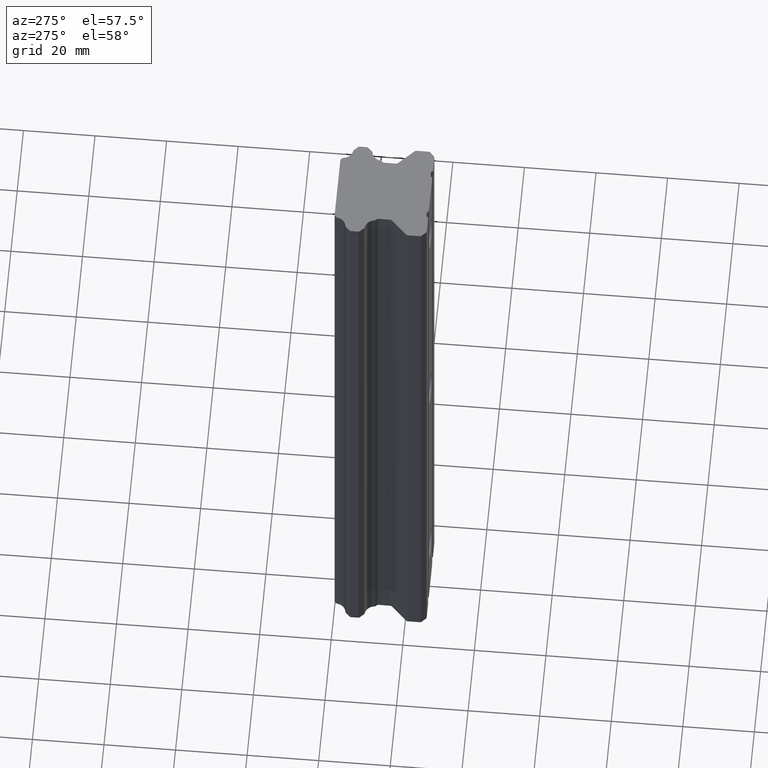
[diagram: clean part render]
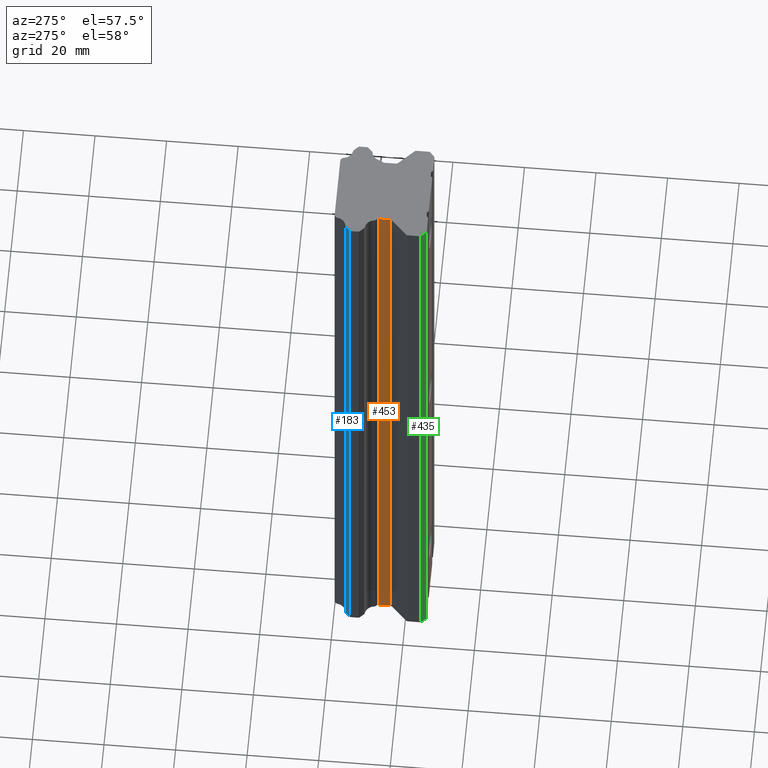
[diagram: same view with three faces highlighted in distinct colors, each labeled with its STEP entity id]
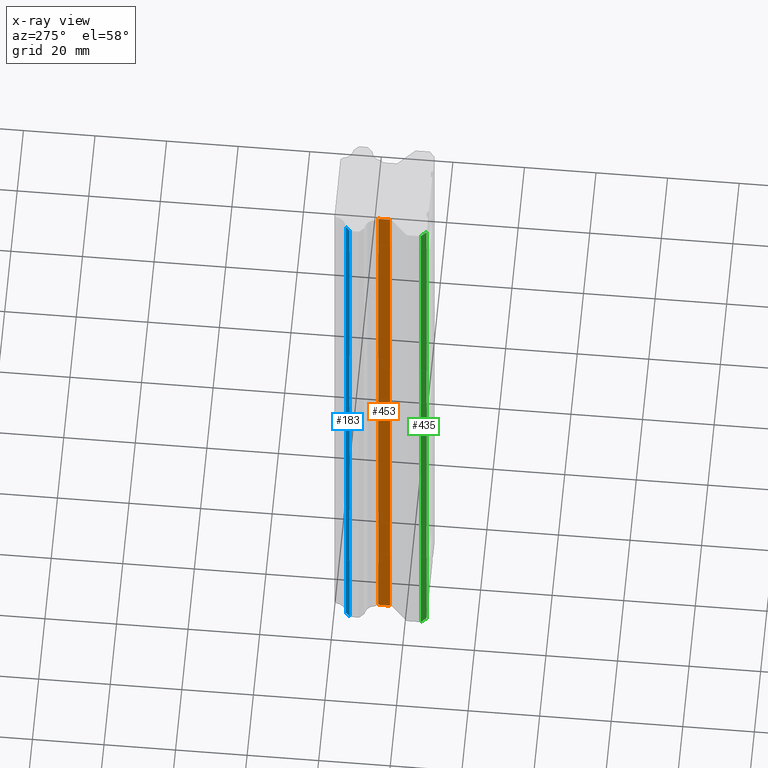
[diagram: x-ray of the same camera — body ghosted, the three highlighted faces saturated]
A machine part, auxiliary view with three faces highlighted in distinct colors.
The next image is the same camera in x-ray (body ghosted, the three faces saturated) — at least one of them is partly hidden behind the body in this view.
Their STEP definitions:

[orange] entity #453 — the highlighted planar face has unit normal (-1, 0, 0).
#145 = VERTEX_POINT ( 'NONE', #768 ) ;
#163 = EDGE_CURVE ( 'NONE', #145, #192, #801, .T. ) ;
#167 = VERTEX_POINT ( 'NONE', #790 ) ;
#169 = EDGE_CURVE ( 'NONE', #167, #173, #789, .T. ) ;
#173 = VERTEX_POINT ( 'NONE', #780 ) ;
#192 = VERTEX_POINT ( 'NONE', #874 ) ;
#381 = EDGE_CURVE ( 'NONE', #192, #167, #1077, .T. ) ;
#382 = ORIENTED_EDGE ( 'NONE', *, *, #169, .T. ) ;
#383 = ORIENTED_EDGE ( 'NONE', *, *, #399, .F. ) ;
#399 = EDGE_CURVE ( 'NONE', #145, #173, #1119, .T. ) ;
#453 = ADVANCED_FACE ( 'NONE', ( #1221 ), #1220, .T. ) ;
#454 = EDGE_LOOP ( 'NONE', ( #455, #456, #382, #383 ) ) ;
#455 = ORIENTED_EDGE ( 'NONE', *, *, #163, .T. ) ;
#456 = ORIENTED_EDGE ( 'NONE', *, *, #381, .T. ) ;
#768 = CARTESIAN_POINT ( 'NONE',  ( -9.300000000000000700, -12.29305139509999900, 100.0000000000000000 ) ) ;
#780 = CARTESIAN_POINT ( 'NONE',  ( -9.300000000000000700, -15.52752949536500000, 100.0000000000000000 ) ) ;
#786 = DIRECTION ( 'NONE',  ( 0.0000000000000000000, 0.0000000000000000000, 1.000000000000000000 ) ) ;
#787 = VECTOR ( 'NONE', #786, 1000.000000000000000 ) ;
#788 = CARTESIAN_POINT ( 'NONE',  ( -9.300000000000000700, -15.52752949537000000, -100.0000000000000000 ) ) ;
#789 = LINE ( 'NONE', #788, #787 ) ;
#790 = CARTESIAN_POINT ( 'NONE',  ( -9.300000000000000700, -15.52752949536500000, -100.0000000000000000 ) ) ;
#798 = DIRECTION ( 'NONE',  ( 0.0000000000000000000, 0.0000000000000000000, -1.000000000000000000 ) ) ;
#799 = VECTOR ( 'NONE', #798, 1000.000000000000000 ) ;
#800 = CARTESIAN_POINT ( 'NONE',  ( -9.300000000000000700, -12.29305139509999900, -100.0000000000000000 ) ) ;
#801 = LINE ( 'NONE', #800, #799 ) ;
#874 = CARTESIAN_POINT ( 'NONE',  ( -9.300000000000000700, -12.29305139509999900, -100.0000000000000000 ) ) ;
#1070 = DIRECTION ( 'NONE',  ( 0.0000000000000000000, -1.000000000000000000, 0.0000000000000000000 ) ) ;
#1071 = VECTOR ( 'NONE', #1070, 1000.000000000000000 ) ;
#1072 = CARTESIAN_POINT ( 'NONE',  ( -9.300000000000000700, 0.0000000000000000000, -100.0000000000000000 ) ) ;
#1077 = LINE ( 'NONE', #1072, #1071 ) ;
#1116 = DIRECTION ( 'NONE',  ( 0.0000000000000000000, -1.000000000000000000, 0.0000000000000000000 ) ) ;
#1117 = VECTOR ( 'NONE', #1116, 1000.000000000000000 ) ;
#1118 = CARTESIAN_POINT ( 'NONE',  ( -9.300000000000000700, 0.0000000000000000000, 100.0000000000000000 ) ) ;
#1119 = LINE ( 'NONE', #1118, #1117 ) ;
#1216 = DIRECTION ( 'NONE',  ( 0.0000000000000000000, 0.0000000000000000000, 1.000000000000000000 ) ) ;
#1217 = DIRECTION ( 'NONE',  ( -1.000000000000000000, 0.0000000000000000000, 0.0000000000000000000 ) ) ;
#1218 = CARTESIAN_POINT ( 'NONE',  ( -9.300000000000000700, -12.29305139509999900, -100.0000000000000000 ) ) ;
#1219 = AXIS2_PLACEMENT_3D ( 'NONE', #1218, #1217, #1216 ) ;
#1220 = PLANE ( 'NONE',  #1219 ) ;
#1221 = FACE_OUTER_BOUND ( 'NONE', #454, .T. ) ;

[blue] entity #183 — the highlighted planar face has unit normal (-0.7071, 0.7071, 0).
#175 = EDGE_LOOP ( 'NONE', ( #180, #209, #197, #217 ) ) ;
#177 = VERTEX_POINT ( 'NONE', #839 ) ;
#178 = VERTEX_POINT ( 'NONE', #838 ) ;
#180 = ORIENTED_EDGE ( 'NONE', *, *, #205, .F. ) ;
#183 = ADVANCED_FACE ( 'NONE', ( #831 ), #830, .T. ) ;
#197 = ORIENTED_EDGE ( 'NONE', *, *, #198, .F. ) ;
#198 = EDGE_CURVE ( 'NONE', #227, #178, #869, .T. ) ;
#204 = VERTEX_POINT ( 'NONE', #855 ) ;
#205 = EDGE_CURVE ( 'NONE', #177, #204, #854, .T. ) ;
#208 = EDGE_CURVE ( 'NONE', #177, #178, #846, .T. ) ;
#209 = ORIENTED_EDGE ( 'NONE', *, *, #208, .T. ) ;
#215 = EDGE_CURVE ( 'NONE', #227, #204, #900, .T. ) ;
#217 = ORIENTED_EDGE ( 'NONE', *, *, #215, .T. ) ;
#227 = VERTEX_POINT ( 'NONE', #929 ) ;
#826 = DIRECTION ( 'NONE',  ( -0.7071067811863974700, -0.7071067811866975600, 0.0000000000000000000 ) ) ;
#827 = DIRECTION ( 'NONE',  ( -0.7071067811866975600, 0.7071067811863974700, 0.0000000000000000000 ) ) ;
#828 = CARTESIAN_POINT ( 'NONE',  ( -12.71655658727999900, -3.460726066391000400, -100.0000000000000000 ) ) ;
#829 = AXIS2_PLACEMENT_3D ( 'NONE', #828, #827, #826 ) ;
#830 = PLANE ( 'NONE',  #829 ) ;
#831 = FACE_OUTER_BOUND ( 'NONE', #175, .T. ) ;
#838 = CARTESIAN_POINT ( 'NONE',  ( -13.82426406871189100, -4.568433547824199100, -100.0000000000000000 ) ) ;
#839 = CARTESIAN_POINT ( 'NONE',  ( -12.71655658728175800, -3.460726066391830900, -100.0000000000000000 ) ) ;
#844 = VECTOR ( 'NONE', #907, 1000.000000000000100 ) ;
#845 = CARTESIAN_POINT ( 'NONE',  ( -12.71655658727999900, -3.460726066391000400, -100.0000000000000000 ) ) ;
#846 = LINE ( 'NONE', #845, #844 ) ;
#851 = DIRECTION ( 'NONE',  ( 0.0000000000000000000, 0.0000000000000000000, 1.000000000000000000 ) ) ;
#852 = VECTOR ( 'NONE', #851, 1000.000000000000000 ) ;
#853 = CARTESIAN_POINT ( 'NONE',  ( -12.71655658728242800, -3.460726066391571500, -100.0000000000000000 ) ) ;
#854 = LINE ( 'NONE', #853, #852 ) ;
#855 = CARTESIAN_POINT ( 'NONE',  ( -12.71655658728175800, -3.460726066391830900, 100.0000000000000000 ) ) ;
#866 = DIRECTION ( 'NONE',  ( 0.0000000000000000000, 0.0000000000000000000, -1.000000000000000000 ) ) ;
#867 = VECTOR ( 'NONE', #866, 1000.000000000000000 ) ;
#868 = CARTESIAN_POINT ( 'NONE',  ( -13.82426406871092800, -4.568433547824072100, -100.0000000000000000 ) ) ;
#869 = LINE ( 'NONE', #868, #867 ) ;
#897 = DIRECTION ( 'NONE',  ( 0.7071067811863974700, 0.7071067811866975600, 0.0000000000000000000 ) ) ;
#898 = VECTOR ( 'NONE', #897, 1000.000000000000100 ) ;
#899 = CARTESIAN_POINT ( 'NONE',  ( -12.71655658727999900, -3.460726066391000400, 100.0000000000000000 ) ) ;
#900 = LINE ( 'NONE', #899, #898 ) ;
#907 = DIRECTION ( 'NONE',  ( -0.7071067811863974700, -0.7071067811866975600, 0.0000000000000000000 ) ) ;
#929 = CARTESIAN_POINT ( 'NONE',  ( -13.82426406871189100, -4.568433547824199100, 100.0000000000000000 ) ) ;

[green] entity #435 — the highlighted planar face has unit normal (-0.7071, -0.7071, 0).
#428 = VERTEX_POINT ( 'NONE', #1139 ) ;
#430 = EDGE_CURVE ( 'NONE', #431, #428, #1138, .T. ) ;
#431 = VERTEX_POINT ( 'NONE', #1134 ) ;
#434 = EDGE_LOOP ( 'NONE', ( #436, #437, #440, #443 ) ) ;
#435 = ADVANCED_FACE ( 'NONE', ( #1192 ), #1191, .T. ) ;
#436 = ORIENTED_EDGE ( 'NONE', *, *, #430, .T. ) ;
#437 = ORIENTED_EDGE ( 'NONE', *, *, #438, .T. ) ;
#438 = EDGE_CURVE ( 'NONE', #428, #439, #1186, .T. ) ;
#439 = VERTEX_POINT ( 'NONE', #1182 ) ;
#440 = ORIENTED_EDGE ( 'NONE', *, *, #441, .F. ) ;
#441 = EDGE_CURVE ( 'NONE', #442, #439, #1181, .T. ) ;
#442 = VERTEX_POINT ( 'NONE', #1177 ) ;
#443 = ORIENTED_EDGE ( 'NONE', *, *, #444, .F. ) ;
#444 = EDGE_CURVE ( 'NONE', #431, #442, #1176, .T. ) ;
#1134 = CARTESIAN_POINT ( 'NONE',  ( -14.00000000000005000, -24.49999999999994700, 100.0000000000000900 ) ) ;
#1135 = DIRECTION ( 'NONE',  ( 0.0000000000000000000, 0.0000000000000000000, -1.000000000000000000 ) ) ;
#1136 = VECTOR ( 'NONE', #1135, 1000.000000000000000 ) ;
#1137 = CARTESIAN_POINT ( 'NONE',  ( -14.00000000000000000, -24.50000000000000000, -100.0000000000000000 ) ) ;
#1138 = LINE ( 'NONE', #1137, #1136 ) ;
#1139 = CARTESIAN_POINT ( 'NONE',  ( -14.00000000000000000, -24.50000000000000000, -100.0000000000000000 ) ) ;
#1173 = DIRECTION ( 'NONE',  ( 0.7071067811865471300, -0.7071067811865479100, 0.0000000000000000000 ) ) ;
#1174 = VECTOR ( 'NONE', #1173, 1000.000000000000000 ) ;
#1175 = CARTESIAN_POINT ( 'NONE',  ( -14.00000000000000000, -24.50000000000000000, 100.0000000000000000 ) ) ;
#1176 = LINE ( 'NONE', #1175, #1174 ) ;
#1177 = CARTESIAN_POINT ( 'NONE',  ( -12.50000000000000000, -26.00000000000000400, 100.0000000000000600 ) ) ;
#1178 = DIRECTION ( 'NONE',  ( 0.0000000000000000000, 0.0000000000000000000, -1.000000000000000000 ) ) ;
#1179 = VECTOR ( 'NONE', #1178, 1000.000000000000000 ) ;
#1180 = CARTESIAN_POINT ( 'NONE',  ( -12.50000000000000000, -26.00000000000000400, -100.0000000000000000 ) ) ;
#1181 = LINE ( 'NONE', #1180, #1179 ) ;
#1182 = CARTESIAN_POINT ( 'NONE',  ( -12.50000000000000000, -26.00000000000000400, -100.0000000000000000 ) ) ;
#1183 = DIRECTION ( 'NONE',  ( 0.7071067811865471300, -0.7071067811865479100, 0.0000000000000000000 ) ) ;
#1184 = VECTOR ( 'NONE', #1183, 1000.000000000000000 ) ;
#1185 = CARTESIAN_POINT ( 'NONE',  ( -14.00000000000000000, -24.50000000000000000, -100.0000000000000000 ) ) ;
#1186 = LINE ( 'NONE', #1185, #1184 ) ;
#1187 = DIRECTION ( 'NONE',  ( 0.7071067811865474600, -0.7071067811865474600, 0.0000000000000000000 ) ) ;
#1188 = DIRECTION ( 'NONE',  ( -0.7071067811865475700, -0.7071067811865475700, 0.0000000000000000000 ) ) ;
#1189 = CARTESIAN_POINT ( 'NONE',  ( -14.00000000000000000, -24.50000000000000000, -100.0000000000000000 ) ) ;
#1190 = AXIS2_PLACEMENT_3D ( 'NONE', #1189, #1188, #1187 ) ;
#1191 = PLANE ( 'NONE',  #1190 ) ;
#1192 = FACE_OUTER_BOUND ( 'NONE', #434, .T. ) ;